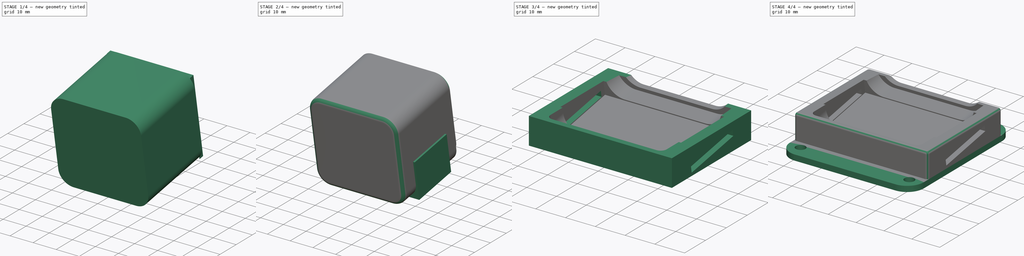
[diagram: build sequence overview — one tinted view per stage of 4, left to right]
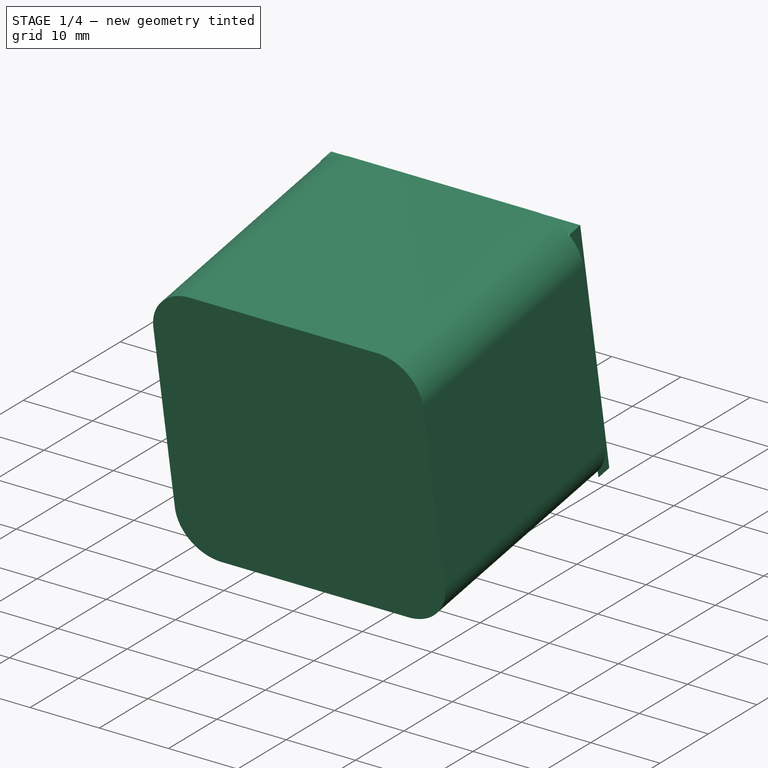
[diagram: stage 1 of 4 — iso view after this stage's code; geometry added in this stage tinted green]
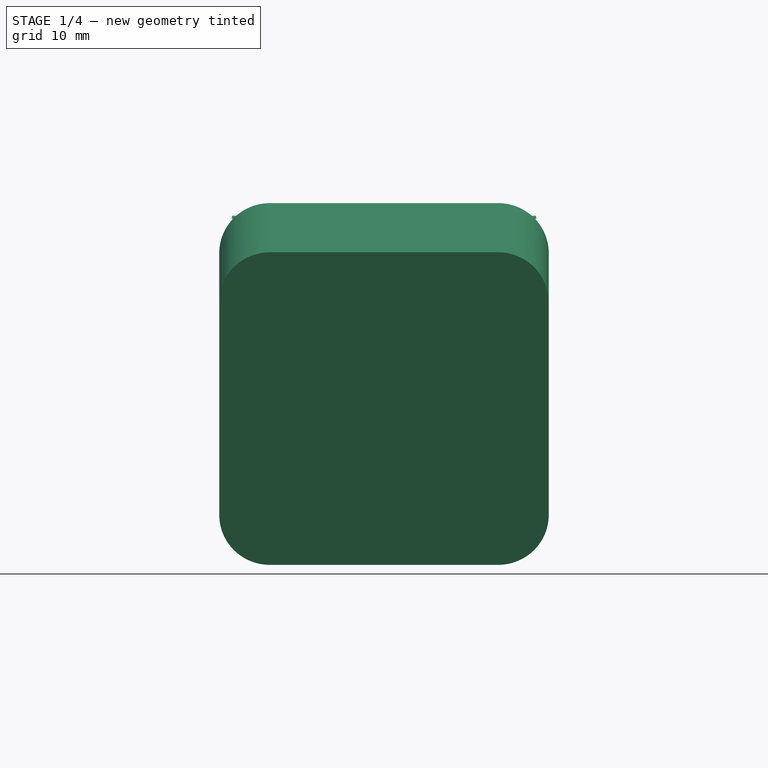
[diagram: stage 1 of 4 — front view after this stage's code; geometry added in this stage tinted green]
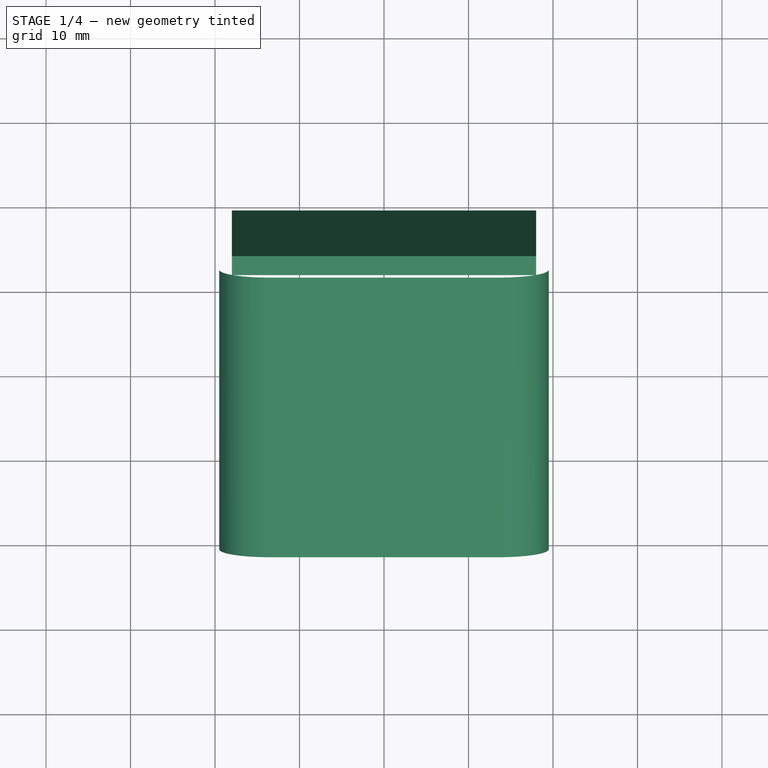
[diagram: stage 1 of 4 — top view after this stage's code; geometry added in this stage tinted green]
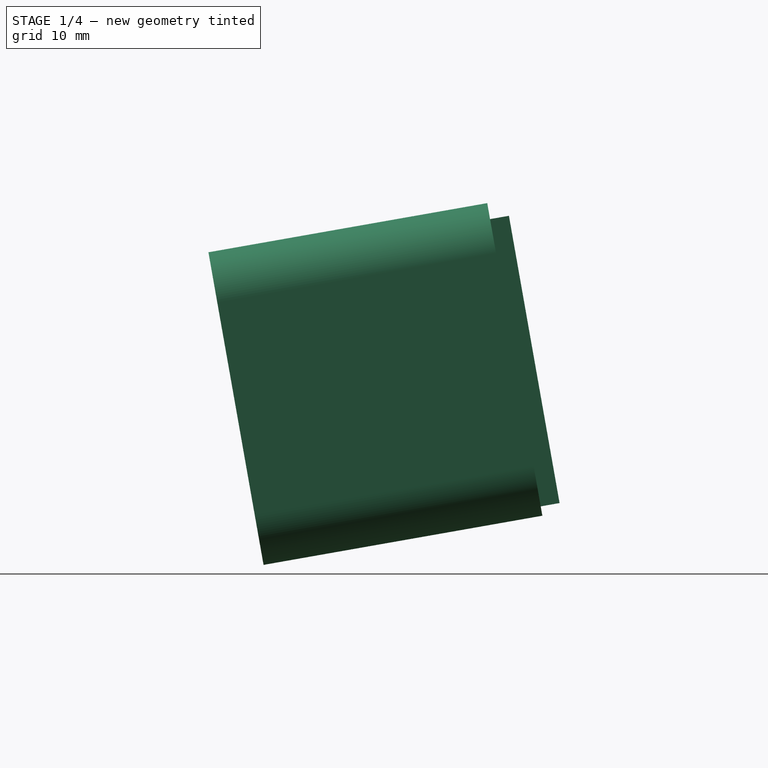
[diagram: stage 1 of 4 — right view after this stage's code; geometry added in this stage tinted green]
FCSTD DOCUMENT  (FreeCAD 0.15R4671 (Git))
Label: QAV250-Hero4-Session-Mount
License: All rights reserved
LicenseURL: http://en.wikipedia.org/wiki/All_rights_reserved
objects: Sketcher::SketchObject×6, PartDesign::Pad×6, Part::Cut×3, Part::Fillet×3, Part::MultiFuse×1, PartDesign::Fillet×1
note: 26 computed .brp shape members not serialized (recipe doc carries the construction recipe); baked Part::Feature solids carry a one-line shape summary decoded from their .brp

FEATURE [Sketcher::SketchObject] Sketch002
  Placement = pos=(0,0,0) rot=(0.57735,0.57735,0.57735;2.0944rad)
  sketch-geometry (4):
    g0: LineSegment StartX=-22.0241 StartY=39 StartZ=0 EndX=10.9759 EndY=44.8188 EndZ=0
    g1: LineSegment StartX=10.9759 StartY=44.8188 StartZ=0 EndX=17.5 EndY=7.81879 EndZ=0
    g2: LineSegment StartX=17.5 StartY=7.81879 StartZ=0 EndX=-15.5 EndY=2 EndZ=0
    g3: LineSegment StartX=-15.5 StartY=2 StartZ=0 EndX=-22.0241 EndY=39 EndZ=0
  constraints (14):
    c: Coincident(g0,g1)
    c: Coincident(g1,g2)
    c: Coincident(g2,g3)
    c: Coincident(g3,g0)
    c: DistanceX(g0,g0) = 33
    c: DistanceY(g0,g2) = -37
    c: DistanceY(g-1,g2) = 2
    c: Angle(g-1,g2) = 0.174533
    c: Angle(g2,g3) = 1.5708
    c: Angle(g3,g0) = 1.5708
    c: Angle(g0,g1) = 1.5708
    c: Equal(g3,g1)
    c: Equal(g0,g2)
    c: DistanceX(g-1,g2) = -15.5
FEATURE [Sketcher::SketchObject] Sketch003
  Placement = pos=(0,0,0) rot=(0.57735,0.57735,0.57735;2.0944rad)
  sketch-geometry (8):
    g0: LineSegment [constr] StartX=-22.1123 StartY=39.5 StartZ=0 EndX=10.8877 EndY=45.3188 EndZ=0
    g1: LineSegment [constr] StartX=10.8877 StartY=45.3188 StartZ=0 EndX=17.5 EndY=7.81879 EndZ=0
    g2: LineSegment [constr] StartX=17.5 StartY=7.81879 StartZ=0 EndX=-15.5 EndY=2 EndZ=0
    g3: LineSegment [constr] StartX=-15.5 StartY=2 StartZ=0 EndX=-22.1123 EndY=39.5 EndZ=0
    g4: LineSegment StartX=13.5418 StartY=43.3188 StartZ=0 EndX=19.5369 EndY=9.31879 EndZ=0
    g5: LineSegment StartX=13.5418 StartY=43.3188 StartZ=0 EndX=11.3098 EndY=42.9252 EndZ=0
    g6: LineSegment StartX=19.5369 StartY=9.31879 StartZ=0 EndX=17.3049 EndY=8.92523 EndZ=0
    g7: LineSegment StartX=11.3098 StartY=42.9252 StartZ=0 EndX=17.3049 EndY=8.92523 EndZ=0
  constraints (24):
    c: Coincident(g0,g1)
    c: Coincident(g1,g2)
    c: Coincident(g2,g3)
    c: Coincident(g3,g0)
    c: DistanceX(g0,g0) = 33
    c: DistanceY(g0,g2) = -37.5
    c: DistanceY(g-1,g2) = 2
    c: Angle(g-1,g2) = 0.174533
    c: Angle(g2,g3) = 1.5708
    c: Angle(g0,g1) = 1.5708
    c: Equal(g3,g1)
    c: Equal(g0,g2)
    c: DistanceX(g-1,g2) = -15.5
    c: DistanceY(g4,g1) = -1.5
    c: DistanceY(g4,g0) = 2
    c: Parallel(g1,g4)
    c: Coincident(g5,g4)
    c: PointOnObject(g5,g1)
    c: Coincident(g6,g4)
    c: PointOnObject(g6,g1)
    c: Angle(g5,g4) = 1.5708
    c: Angle(g4,g6) = 1.5708
    c: Coincident(g7,g6)
    c: Coincident(g7,g5)
FEATURE [PartDesign::Pad] Pad001
  Length = 36
  Length2 = 100
  Midplane = true
  Placement = pos=(0,0,0) rot=(0.57735,0.57735,0.57735;2.0944rad)
  Sketch = -> Sketch003
  Type = 0
FEATURE [PartDesign::Pad] Pad002
  Length = 39
  Length2 = 100
  Midplane = true
  Placement = pos=(0,0,0) rot=(0.57735,0.57735,0.57735;2.0944rad)
  Sketch = -> Sketch002
  Type = 0
FEATURE [Part::MultiFuse] Fusion
  Shapes = -> [Pad001,Pad002]
FEATURE [Part::Fillet] Fillet
  Base = -> Fusion
  Edges = 4 edges r=6: [Edge18,Edge19,Edge20,Edge22]
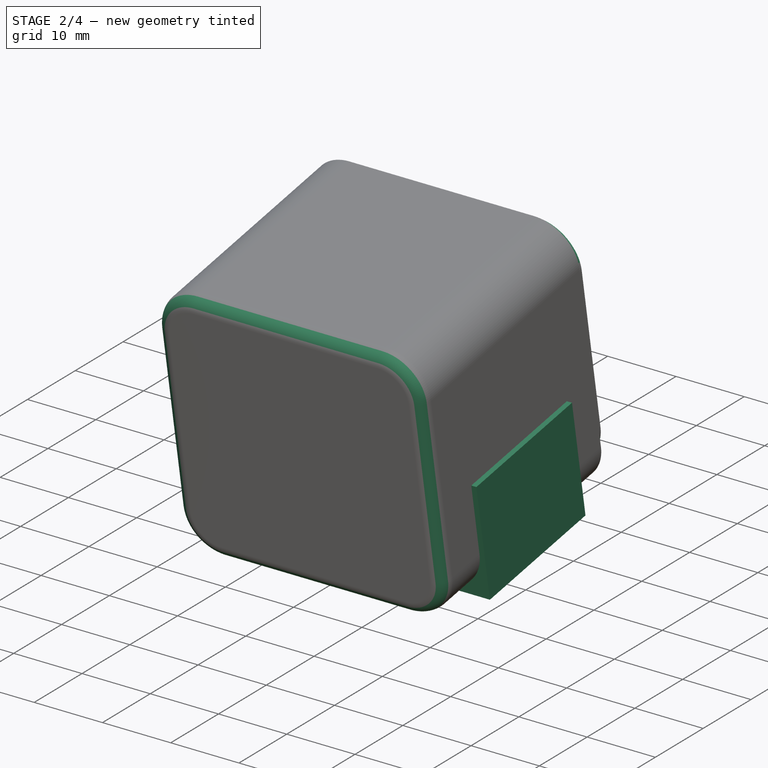
[diagram: stage 2 of 4 — iso view after this stage's code; geometry added in this stage tinted green]
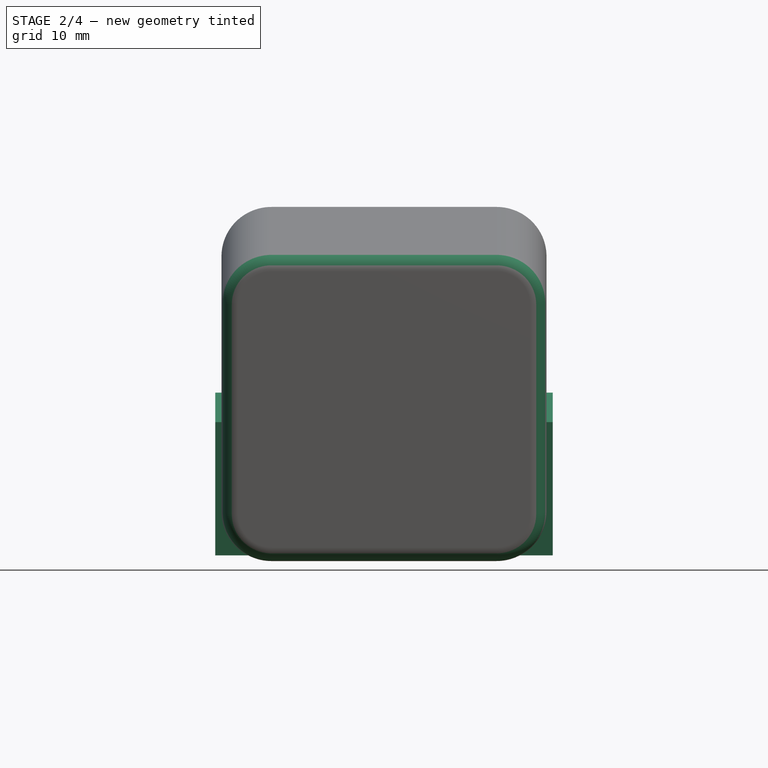
[diagram: stage 2 of 4 — front view after this stage's code; geometry added in this stage tinted green]
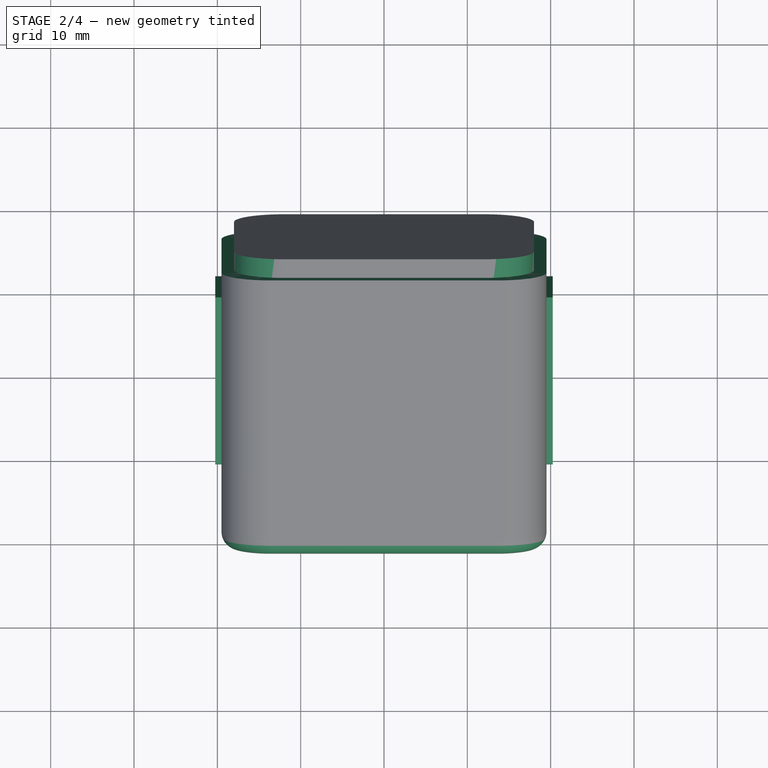
[diagram: stage 2 of 4 — top view after this stage's code; geometry added in this stage tinted green]
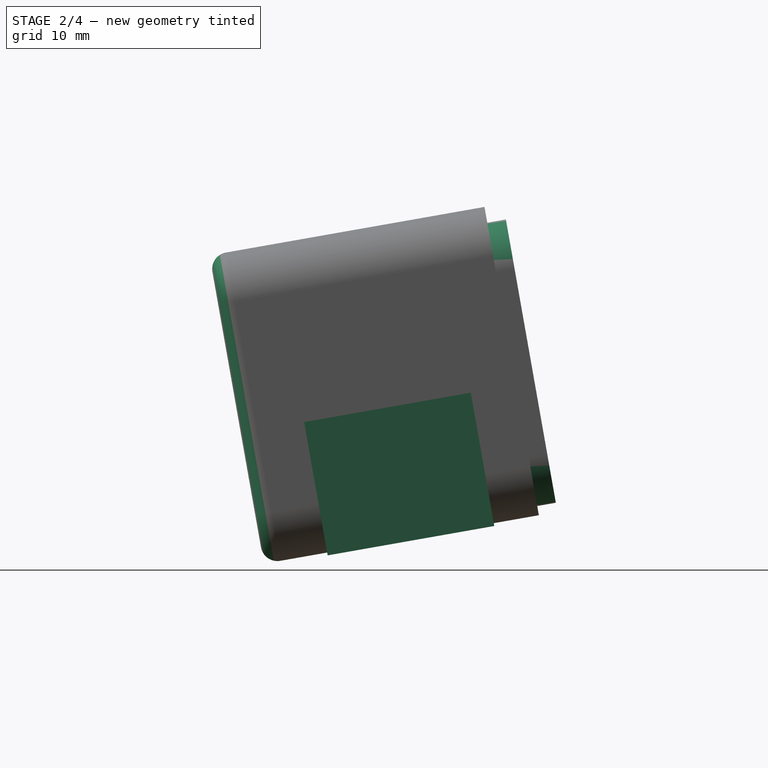
[diagram: stage 2 of 4 — right view after this stage's code; geometry added in this stage tinted green]
FEATURE [Sketcher::SketchObject] Sketch007
  Placement = pos=(0,0,0) rot=(0.57735,0.57735,0.57735;2.0944rad)
  sketch-geometry (8):
    g0: LineSegment [constr] StartX=-20.1449 StartY=17 StartZ=0 EndX=16.8551 EndY=23.5241 EndZ=0
    g1: LineSegment [constr] StartX=16.8551 StartY=23.5241 StartZ=0 EndX=20.6504 EndY=2 EndZ=0
    g2: LineSegment [constr] StartX=20.6504 StartY=2 StartZ=0 EndX=-17.5 EndY=2 EndZ=0
    g3: LineSegment [constr] StartX=-17.5 StartY=2 StartZ=0 EndX=-20.1449 EndY=17 EndZ=0
    g4: LineSegment StartX=-10.6709 StartY=19 StartZ=0 EndX=9.32914 EndY=22.5265 EndZ=0
    g5: LineSegment StartX=9.32914 StartY=22.5265 StartZ=0 EndX=12.1504 EndY=6.52654 EndZ=0
    g6: LineSegment StartX=12.1504 StartY=6.52654 StartZ=0 EndX=-7.84963 EndY=3 EndZ=0
    g7: LineSegment StartX=-7.84963 StartY=3 StartZ=0 EndX=-10.6709 EndY=19 EndZ=0
  constraints (24):
    c: Coincident(g0,g1)
    c: Coincident(g1,g2)
    c: Coincident(g2,g3)
    c: Coincident(g3,g0)
    c: DistanceX(g0,g0) = 37
    c: DistanceY(g0,g2) = -15
    c: DistanceY(g-1,g2) = 2
    c: Angle(g2,g3) = 1.74533
    c: Angle(g3,g0) = 1.5708
    c: Angle(g0,g1) = 1.5708
    c: DistanceX(g-1,g2) = -17.5
    c: Angle(g-1,g0) = 0.174533
    c: Coincident(g4,g5)
    c: Coincident(g5,g6)
    c: Coincident(g6,g7)
    c: Coincident(g7,g4)
    c: DistanceY(g5,g4) = 16
    c: Equal(g4,g6)
    c: Equal(g7,g5)
    c: DistanceX(g6,g5) = 20
    c: Parallel(g7,g3)
    c: Parallel(g4,g0)
    c: DistanceX(g1,g5) = -8.5
    c: DistanceY(g6,g2) = -1
FEATURE [PartDesign::Pad] Pad005  label="Holder Strap Guide"
  Length = 40.5
  Length2 = 100
  Midplane = true
  Placement = pos=(0,0,0) rot=(0.57735,0.57735,0.57735;2.0944rad)
  Sketch = -> Sketch007
  Type = 0
FEATURE [Part::Fillet] Fillet001
  Base = -> Fillet
  Edges = 4 edges r=6: [Edge30,Edge31,Edge33,Edge35]
FEATURE [Part::Fillet] Fillet006  label="Cam"
  Base = -> Fillet001
  Edges = 8 edges r=2: [Edge33,Edge36,Edge38,Edge41,Edge43,Edge45,Edge47,Edge48]
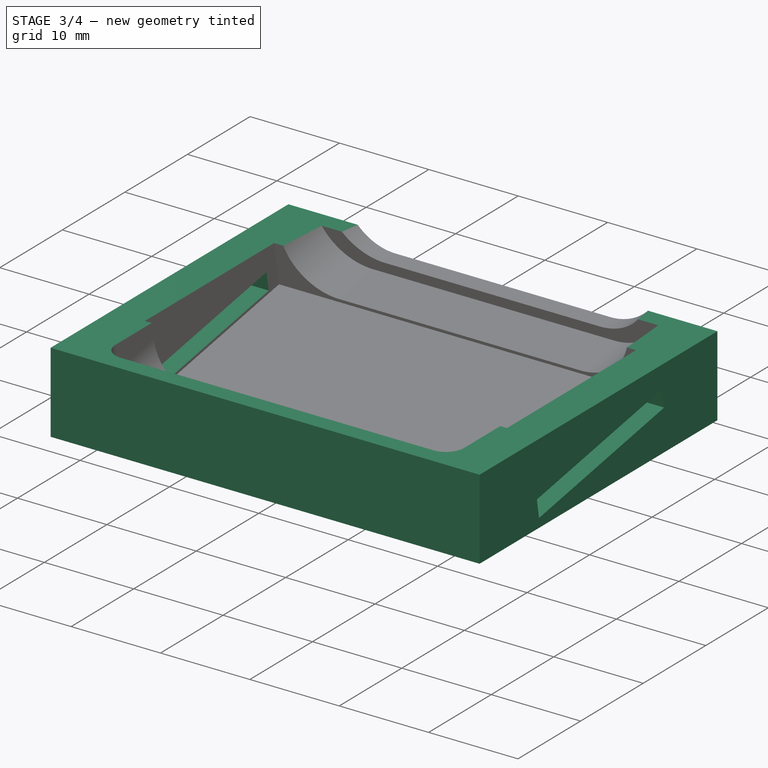
[diagram: stage 3 of 4 — iso view after this stage's code; geometry added in this stage tinted green]
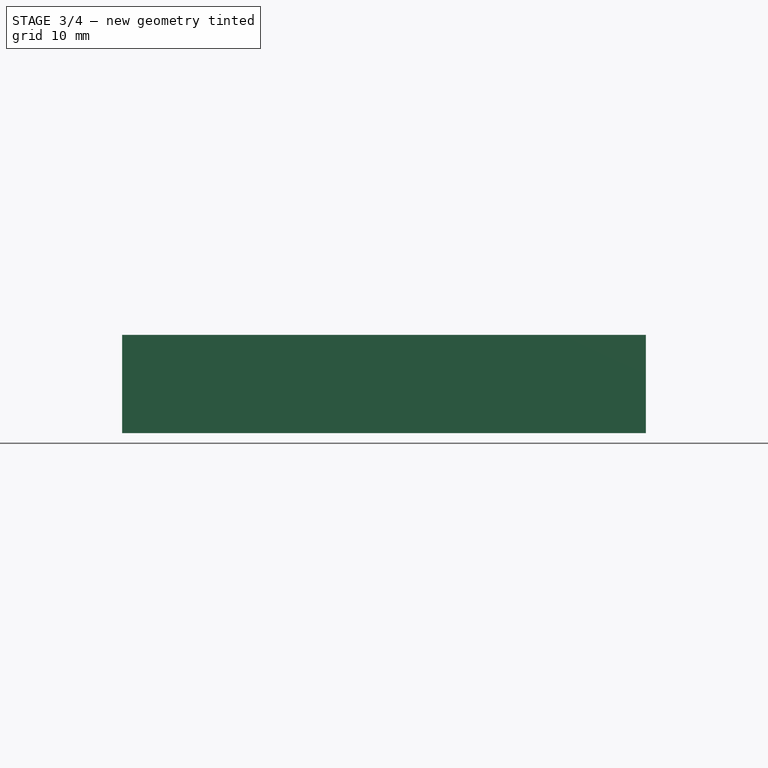
[diagram: stage 3 of 4 — front view after this stage's code; geometry added in this stage tinted green]
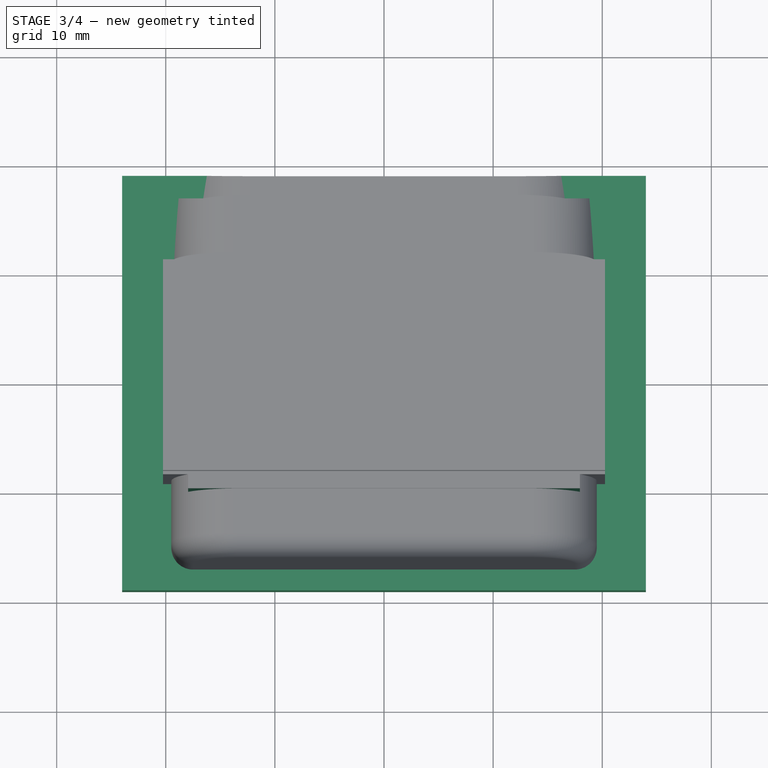
[diagram: stage 3 of 4 — top view after this stage's code; geometry added in this stage tinted green]
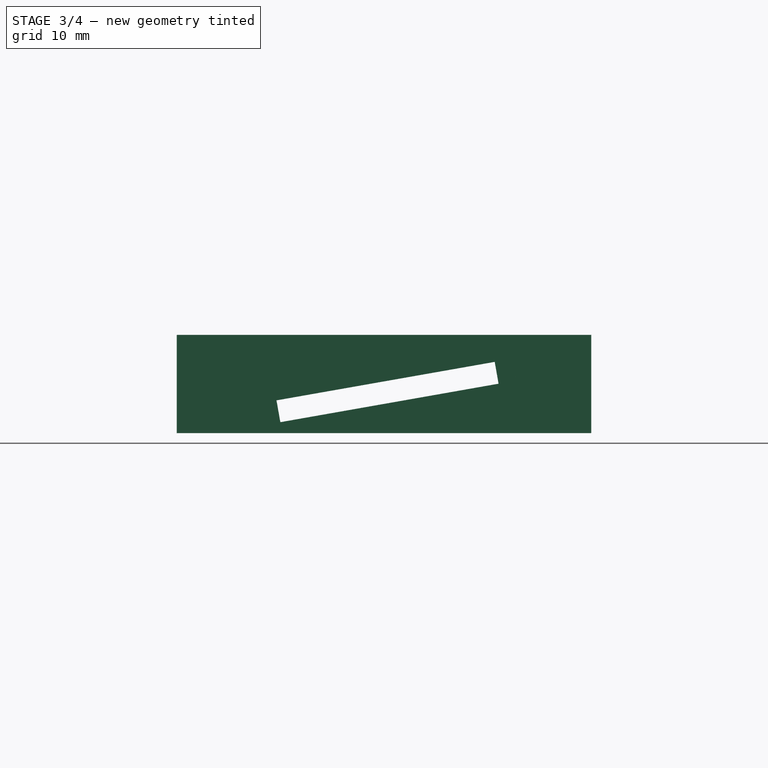
[diagram: stage 3 of 4 — right view after this stage's code; geometry added in this stage tinted green]
FEATURE [Sketcher::SketchObject] Sketch004
  Placement = pos=(0,0,0) rot=(0.57735,0.57735,0.57735;2.0944rad)
  sketch-geometry (8):
    g0: LineSegment StartX=-19 StartY=11 StartZ=0 EndX=19 EndY=11 EndZ=0
    g1: LineSegment StartX=19 StartY=11 StartZ=0 EndX=19 EndY=2 EndZ=0
    g2: LineSegment StartX=19 StartY=2 StartZ=0 EndX=-19 EndY=2 EndZ=0
    g3: LineSegment StartX=-19 StartY=2 StartZ=0 EndX=-19 EndY=11 EndZ=0
    g4: LineSegment StartX=-9.85264 StartY=4.99994 StartZ=0 EndX=10.1473 EndY=8.52654 EndZ=0
    g5: LineSegment StartX=10.1473 StartY=8.52654 StartZ=0 EndX=10.5 EndY=6.52654 EndZ=0
    g6: LineSegment StartX=10.5 StartY=6.52654 StartZ=0 EndX=-9.5 EndY=3 EndZ=0
    g7: LineSegment StartX=-9.5 StartY=3 StartZ=0 EndX=-9.85264 EndY=4.99994 EndZ=0
  constraints (24):
    c: Coincident(g0,g1)
    c: Coincident(g1,g2)
    c: Coincident(g2,g3)
    c: Coincident(g3,g0)
    c: DistanceY(g-1,g2) = 2
    c: Angle(g2,g3) = 1.5708
    c: DistanceX(g-1,g2) = -19
    c: Coincident(g4,g5)
    c: Coincident(g5,g6)
    c: Coincident(g6,g7)
    c: Coincident(g7,g4)
    c: DistanceY(g5,g4) = 2
    c: Equal(g4,g6)
    c: DistanceX(g6,g5) = 20
    c: DistanceX(g1,g5) = -8.5
    c: DistanceY(g6,g2) = -1
    c: Angle(g1,g2) = 1.5708
    c: Horizontal(g2)
    c: Angle(g2,g6) = 0.174533
    c: Angle(g6,g7) = 1.5708
    c: Angle(g5,g6) = 1.5708
    c: DistanceX(g2,g1) = 38
    c: Angle(g0,g1) = 1.5708
    c: DistanceY(g2,g0) = 9
FEATURE [PartDesign::Pad] Pad003  label="Holder Base"
  Length = 48
  Length2 = 100
  Midplane = true
  Placement = pos=(0,0,0) rot=(0.57735,0.57735,0.57735;2.0944rad)
  Sketch = -> Sketch004
  Type = 0
FEATURE [Part::Cut] Cut  label="Holder"
  Base = -> Pad003
  Tool = -> Pad005
FEATURE [Part::Cut] Cut001
  Base = -> Cut
  Tool = -> Fillet006
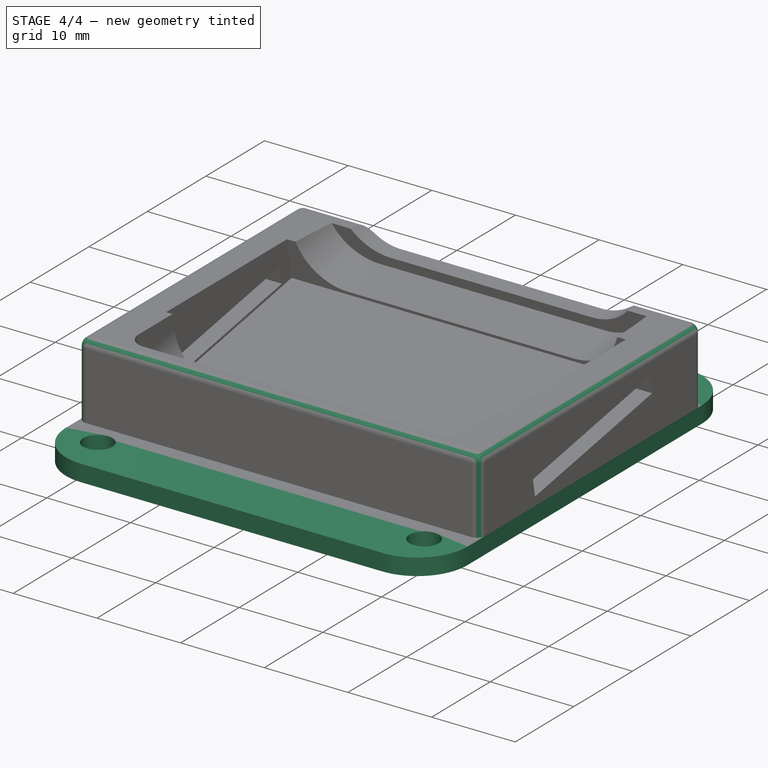
[diagram: stage 4 of 4 — iso view after this stage's code; geometry added in this stage tinted green]
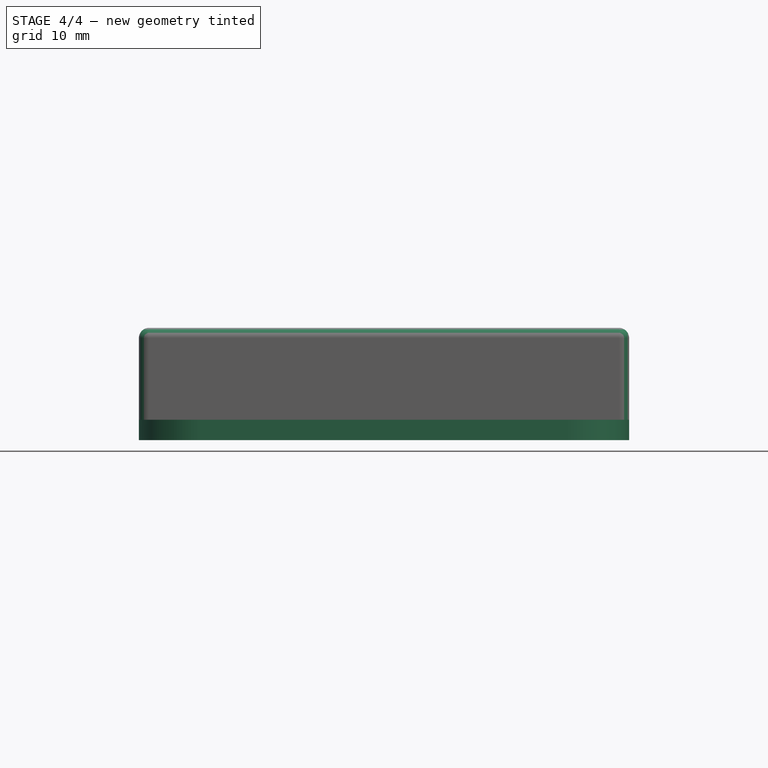
[diagram: stage 4 of 4 — front view after this stage's code; geometry added in this stage tinted green]
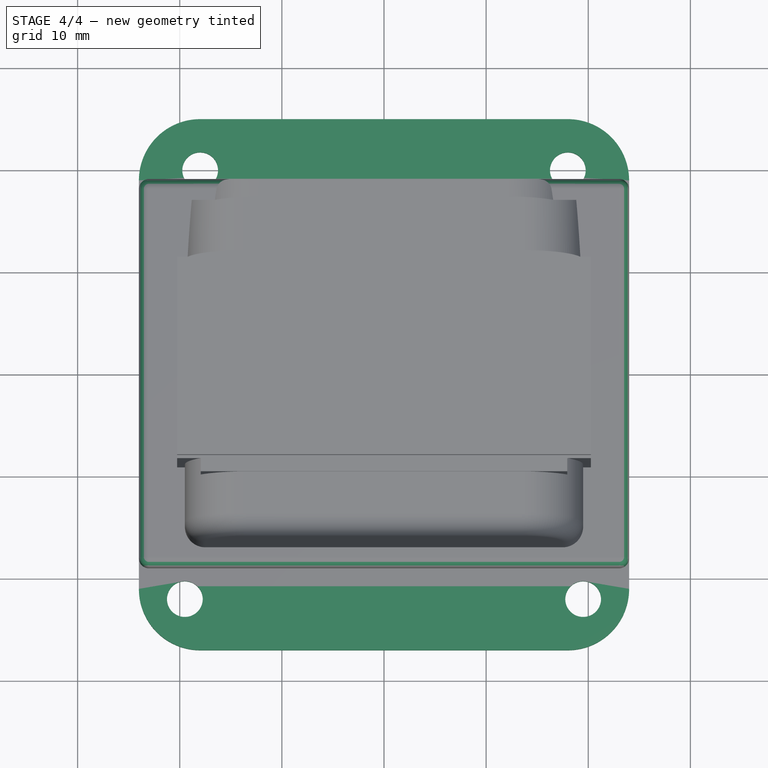
[diagram: stage 4 of 4 — top view after this stage's code; geometry added in this stage tinted green]
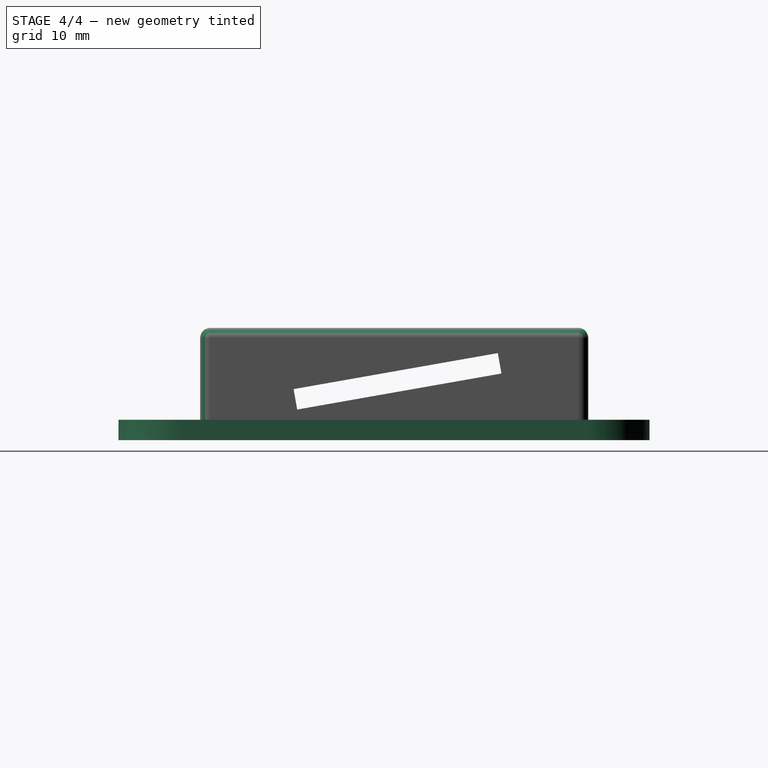
[diagram: stage 4 of 4 — right view after this stage's code; geometry added in this stage tinted green]
FEATURE [Sketcher::SketchObject] Sketch
  sketch-geometry (16):
    g0: LineSegment StartX=-18 StartY=25 StartZ=0 EndX=18 EndY=25 EndZ=0
    g1: LineSegment StartX=24 StartY=19 StartZ=0 EndX=24 EndY=-21 EndZ=0
    g2: LineSegment StartX=-24 StartY=-21 StartZ=0 EndX=-24 EndY=19 EndZ=0
    g3: Circle CenterX=-18 CenterY=20 CenterZ=0 NormalX=0 NormalY=0 NormalZ=1 Radius=1.75
    g4: LineSegment [constr] StartX=-18 StartY=20 StartZ=0 EndX=-18 EndY=25 EndZ=0
    g5: LineSegment [constr] StartX=-18 StartY=20 StartZ=0 EndX=-24 EndY=20 EndZ=0
    g6: Circle CenterX=18 CenterY=20 CenterZ=0 NormalX=0 NormalY=0 NormalZ=1 Radius=1.75
    g7: LineSegment [constr] StartX=18 StartY=20 StartZ=0 EndX=18 EndY=25 EndZ=0
    g8: LineSegment [constr] StartX=18 StartY=20 StartZ=0 EndX=24 EndY=20 EndZ=0
    g9: LineSegment StartX=-18 StartY=-27 StartZ=0 EndX=18 EndY=-27 EndZ=0
    g10: ArcOfCircle CenterX=-18 CenterY=19 CenterZ=0 NormalX=0 NormalY=0 NormalZ=1 Radius=6 StartAngle=1.5708 EndAngle=3.14159
    g11: ArcOfCircle CenterX=18 CenterY=19 CenterZ=0 NormalX=0 NormalY=0 NormalZ=1 Radius=6 StartAngle=0 EndAngle=1.5708
    g12: ArcOfCircle CenterX=-18 CenterY=-21 CenterZ=0 NormalX=0 NormalY=0 NormalZ=1 Radius=6 StartAngle=3.14159 EndAngle=4.71239
    g13: ArcOfCircle CenterX=18 CenterY=-21 CenterZ=0 NormalX=0 NormalY=0 NormalZ=1 Radius=6 StartAngle=4.71239 EndAngle=6.28319
    g14: Circle CenterX=-19.5 CenterY=-22 CenterZ=0 NormalX=0 NormalY=0 NormalZ=1 Radius=1.75
    g15: Circle CenterX=19.5 CenterY=-22 CenterZ=0 NormalX=0 NormalY=0 NormalZ=1 Radius=1.75
  constraints (44):
    c: Horizontal(g0)
    c: Vertical(g1)
    c: Vertical(g2)
    c: Radius(g3) = 1.75
    c: Coincident(g4,g3)
    c: PointOnObject(g4,g0)
    c: Vertical(g4)
    c: Coincident(g5,g3)
    c: PointOnObject(g5,g2)
    c: Horizontal(g5)
    c: Distance(g5) = 6
    c: Distance(g4) = 5
    c: Radius(g6) = 1.75
    c: Coincident(g7,g6)
    c: PointOnObject(g7,g0)
    c: Vertical(g7)
    c: Coincident(g8,g6)
    c: Horizontal(g8)
    c: Distance(g8) = 6
    c: PointOnObject(g8,g1)
    c: Distance(g7) = 5
    c: Horizontal(g9)
    c: Tangent(g2,g10) = 1.5708
    c: Tangent(g0,g10) = 1.5708
    c: Tangent(g0,g11) = 1.5708
    c: Tangent(g1,g11) = 1.5708
    c: Equal(g11,g10)
    c: Tangent(g2,g12) = 1.5708
    c: Tangent(g9,g12) = -1.5708
    c: Tangent(g1,g13) = 1.5708
    c: Tangent(g9,g13) = -1.5708
    c: DistanceY(g9,g0) = 52
    c: Radius(g14) = 1.75
    c: DistanceX(g14,g2) = -4.5
    c: Distance(g2,g1) = 48
    c: DistanceY(g14,g9) = -5
    c: DistanceY(g10,g3) = 1
    c: DistanceY(g12,g9) = -6
    c: DistanceY(g9,g13) = 6
    c: Radius(g15) = 1.75
    c: DistanceX(g15,g1) = 4.5
    c: DistanceY(g15,g9) = -5
    c: DistanceX(g-1,g2) = -24
    c: DistanceY(g-1,g9) = -27
FEATURE [PartDesign::Pad] Pad
  Length = 2
  Length2 = 100
  Sketch = -> Sketch
  Type = 0
FEATURE [Sketcher::SketchObject] Sketch006
  Placement = pos=(0,0,-0.37) rot=(0,0,1;0rad)
  sketch-geometry (16):
    g0: LineSegment [constr] StartX=-18 StartY=25 StartZ=0 EndX=18 EndY=25 EndZ=0
    g1: LineSegment [constr] StartX=24 StartY=19 StartZ=0 EndX=24 EndY=-21 EndZ=0
    g2: LineSegment [constr] StartX=-24 StartY=-21 StartZ=0 EndX=-24 EndY=19 EndZ=0
    g3: Circle CenterX=-18 CenterY=20 CenterZ=0 NormalX=0 NormalY=0 NormalZ=1 Radius=2.75
    g4: LineSegment [constr] StartX=-18 StartY=20 StartZ=0 EndX=-18 EndY=25 EndZ=0
    g5: LineSegment [constr] StartX=-18 StartY=20 StartZ=0 EndX=-24 EndY=20 EndZ=0
    g6: Circle CenterX=18 CenterY=20 CenterZ=0 NormalX=0 NormalY=0 NormalZ=1 Radius=2.75
    g7: LineSegment [constr] StartX=18 StartY=20 StartZ=0 EndX=18 EndY=25 EndZ=0
    g8: LineSegment [constr] StartX=18 StartY=20 StartZ=0 EndX=24 EndY=20 EndZ=0
    g9: LineSegment [constr] StartX=-18 StartY=-27 StartZ=0 EndX=18 EndY=-27 EndZ=0
    g10: ArcOfCircle [constr] CenterX=-18 CenterY=19 CenterZ=0 NormalX=0 NormalY=0 NormalZ=1 Radius=6 StartAngle=1.5708 EndAngle=3.14159
    g11: ArcOfCircle [constr] CenterX=18 CenterY=19 CenterZ=0 NormalX=0 NormalY=0 NormalZ=1 Radius=6 StartAngle=0 EndAngle=1.5708
    g12: ArcOfCircle [constr] CenterX=-18 CenterY=-21 CenterZ=0 NormalX=0 NormalY=0 NormalZ=1 Radius=6 StartAngle=3.14159 EndAngle=4.71239
    g13: ArcOfCircle [constr] CenterX=18 CenterY=-21 CenterZ=0 NormalX=0 NormalY=0 NormalZ=1 Radius=6 StartAngle=4.71239 EndAngle=6.28319
    g14: Circle [constr] CenterX=-19.5 CenterY=-22 CenterZ=0 NormalX=0 NormalY=0 NormalZ=1 Radius=1.75
    g15: Circle [constr] CenterX=19.5 CenterY=-22 CenterZ=0 NormalX=0 NormalY=0 NormalZ=1 Radius=1.75
  constraints (44):
    c: Horizontal(g0)
    c: Vertical(g1)
    c: Vertical(g2)
    c: Radius(g3) = 2.75
    c: Coincident(g4,g3)
    c: PointOnObject(g4,g0)
    c: Vertical(g4)
    c: Coincident(g5,g3)
    c: PointOnObject(g5,g2)
    c: Horizontal(g5)
    c: Distance(g5) = 6
    c: Distance(g4) = 5
    c: Radius(g6) = 2.75
    c: Coincident(g7,g6)
    c: PointOnObject(g7,g0)
    c: Vertical(g7)
    c: Coincident(g8,g6)
    c: Horizontal(g8)
    c: Distance(g8) = 6
    c: PointOnObject(g8,g1)
    c: Distance(g7) = 5
    c: Horizontal(g9)
    c: Tangent(g2,g10) = 1.5708
    c: Tangent(g0,g10) = 1.5708
    c: Tangent(g0,g11) = 1.5708
    c: Tangent(g1,g11) = 1.5708
    c: Equal(g11,g10)
    c: Tangent(g2,g12) = 1.5708
    c: Tangent(g9,g12) = -1.5708
    c: Tangent(g1,g13) = 1.5708
    c: Tangent(g9,g13) = -1.5708
    c: DistanceY(g9,g0) = 52
    c: Radius(g14) = 1.75
    c: DistanceX(g14,g2) = -4.5
    c: Distance(g2,g1) = 48
    c: DistanceY(g14,g9) = -5
    c: DistanceY(g10,g3) = 1
    c: DistanceY(g12,g9) = -6
    c: DistanceY(g9,g13) = 6
    c: Radius(g15) = 1.75
    c: DistanceX(g15,g1) = 4.5
    c: DistanceY(g15,g9) = -5
    c: DistanceX(g-1,g2) = -24
    c: DistanceY(g-1,g9) = -27
FEATURE [PartDesign::Pad] Pad004  label="Front Screw Guides"
  Length = 5
  Length2 = 100
  Placement = pos=(0,0,-0.37) rot=(0,0,1;0rad)
  Sketch = -> Sketch006
  Type = 0
FEATURE [Part::Cut] Cut002
  Base = -> Cut001
  Tool = -> Pad004
FEATURE [PartDesign::Fillet] Fillet007
  Base = -> Cut002 [Edge39,Edge89,Edge23,Edge25,Edge1,Edge2,Edge20,Edge21,Edge22]
  Radius = 1
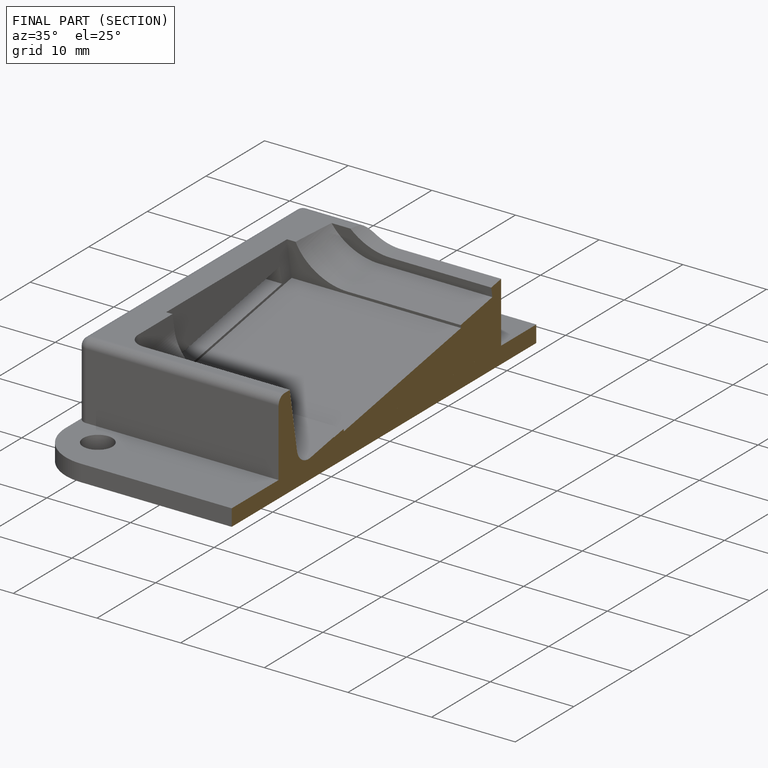
[diagram: finished part — half-section view (interior)]
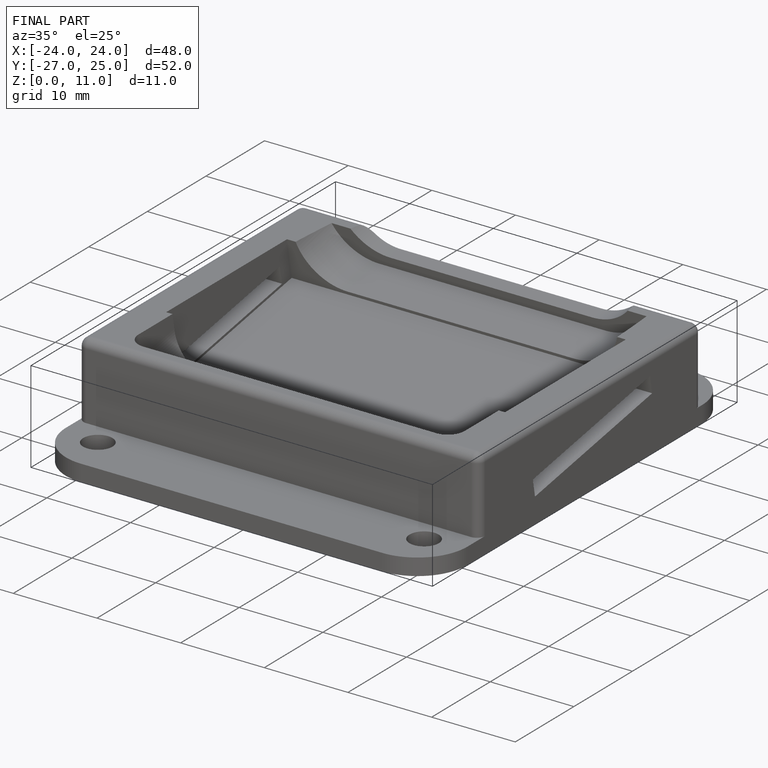
[diagram: finished part — iso view with bounding-box wireframe]
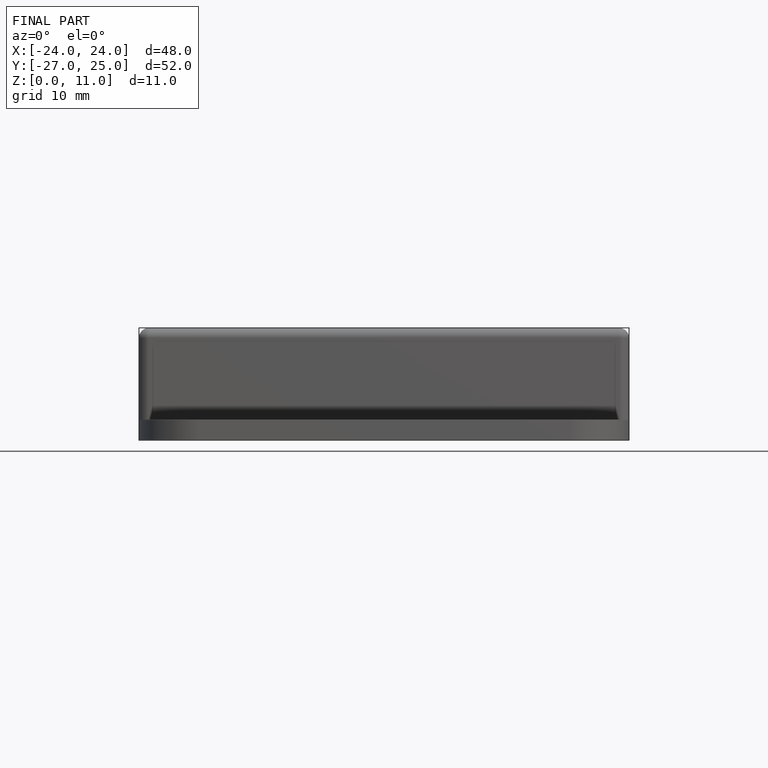
[diagram: finished part — front view with bounding-box wireframe]
